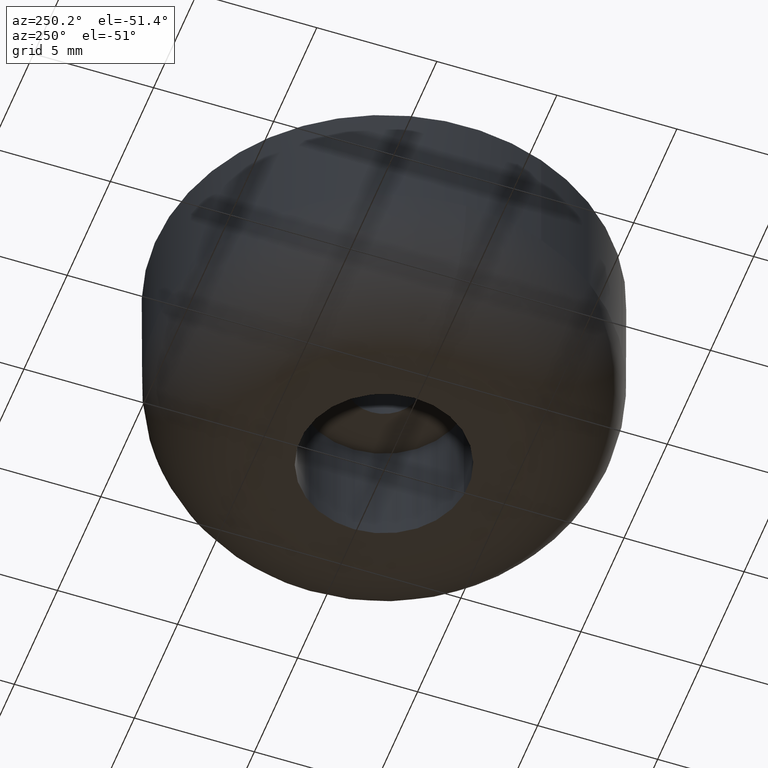
[diagram: clean part render]
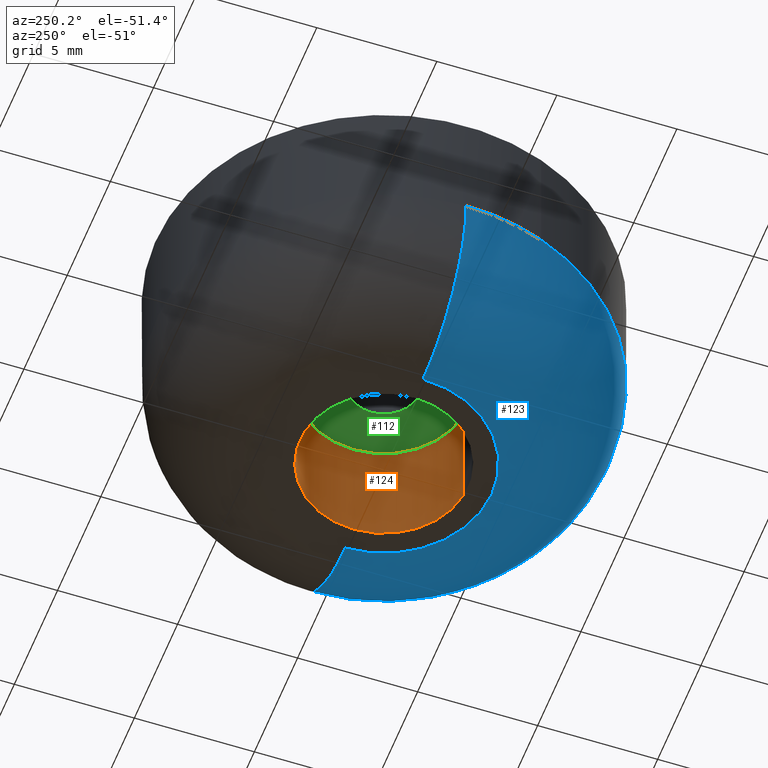
[diagram: same view with three faces highlighted in distinct colors, each labeled with its STEP entity id]
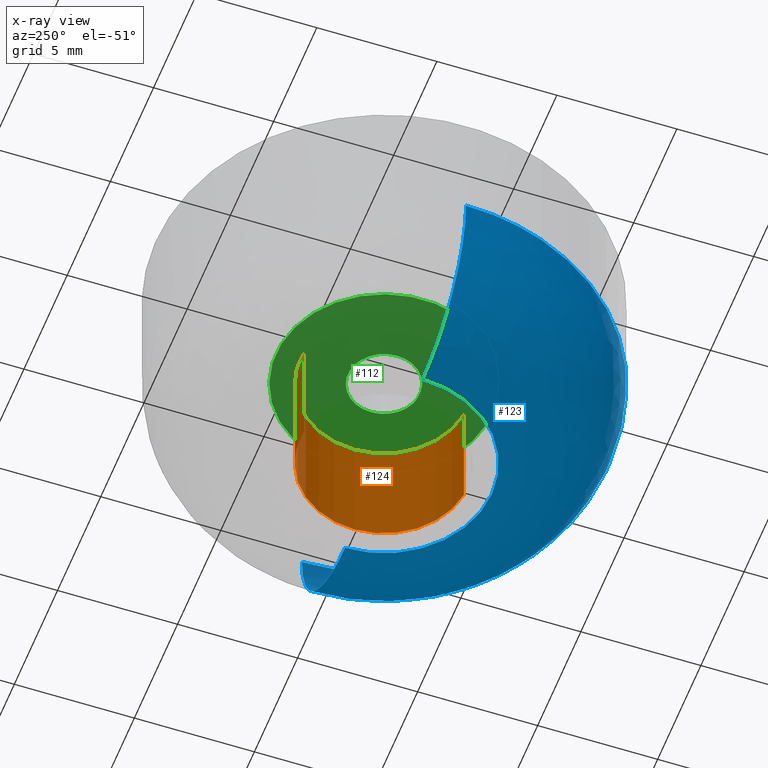
[diagram: x-ray of the same camera — body ghosted, the three highlighted faces saturated]
A machine part, auxiliary view with three faces highlighted in distinct colors.
The next image is the same camera in x-ray (body ghosted, the three faces saturated) — at least one of them is partly hidden behind the body in this view.
Their STEP definitions:

[orange] entity #124 — the highlighted cylindrical surface (partial cylindrical patch) has radius 3.5 mm, axis along (-0, -0, -1).
#124=ADVANCED_FACE('',(#259),#258,.F.);
#258=CYLINDRICAL_SURFACE('',#449,3.50000000000E+000);
#259=FACE_OUTER_BOUND('',#450,.T.);
#446=CARTESIAN_POINT('',(-7.72292183025E-016,1.99786564258E-016,2.50000000000E+000));
#447=DIRECTION('',(-1.19947021122E-014,-1.29797632162E-015,-1.00000000000E+000));
#448=DIRECTION('',(-1.18034234657E-001,9.93009526364E-001,1.26882631389E-016));
#449=AXIS2_PLACEMENT_3D('',#446,#447,#448);
#450=EDGE_LOOP('',(#536,#537,#538,#539));
#536=ORIENTED_EDGE('',*,*,#593,.F.);
#537=ORIENTED_EDGE('',*,*,#604,.T.);
#538=ORIENTED_EDGE('',*,*,#585,.T.);
#539=ORIENTED_EDGE('',*,*,#605,.F.);
#585=EDGE_CURVE('',#707,#706,#714,.T.);
#593=EDGE_CURVE('',#763,#762,#770,.T.);
#604=EDGE_CURVE('',#763,#707,#844,.T.);
#605=EDGE_CURVE('',#762,#706,#850,.T.);
#706=VERTEX_POINT('',#950);
#707=VERTEX_POINT('',#951);
#714=CIRCLE('',#959,3.50000000000E+000);
#762=VERTEX_POINT('',#990);
#763=VERTEX_POINT('',#991);
#770=CIRCLE('',#999,3.50000000000E+000);
#844=(BOUNDED_CURVE() B_SPLINE_CURVE(1,(#1050,#1051),.UNSPECIFIED.,.F.,.F.) B_SPLINE_CURVE_WITH_KNOTS((2,2),(8.33333383004E-002,9.16666664635E-001),.UNSPECIFIED.) CURVE() GEOMETRIC_REPRESENTATION_ITEM() RATIONAL_B_SPLINE_CURVE((1.00000000000E+000,1.00000000000E+000)) REPRESENTATION_ITEM('') );
#850=(BOUNDED_CURVE() B_SPLINE_CURVE(1,(#1052,#1053),.UNSPECIFIED.,.F.,.F.) B_SPLINE_CURVE_WITH_KNOTS((2,2),(8.33333333333E-002,9.16666666667E-001),.UNSPECIFIED.) CURVE() GEOMETRIC_REPRESENTATION_ITEM() RATIONAL_B_SPLINE_CURVE((7.50000000000E-001,7.50000000000E-001)) REPRESENTATION_ITEM('') );
#950=CARTESIAN_POINT('',(4.13720514207E-001,-3.47546188817E+000,2.63624805855E-015));
#951=CARTESIAN_POINT('',(-4.13720514207E-001,3.47546188817E+000,1.32419206077E-015));
#956=CARTESIAN_POINT('',(1.24122934153E-013,5.59552404411E-014,1.98022005966E-015));
#957=DIRECTION('',(-6.30289241881E-015,-9.39059036296E-016,-1.00000000000E+000));
#958=DIRECTION('',(-1.18205861202E-001,9.92989110906E-001,-1.87436571110E-016));
#959=AXIS2_PLACEMENT_3D('',#956,#957,#958);
#990=CARTESIAN_POINT('',(4.13118550316E-001,-3.47553349335E+000,5.00000000000E+000));
#991=CARTESIAN_POINT('',(-4.13119821299E-001,3.47553334227E+000,5.00000000000E+000));
#996=CARTESIAN_POINT('',(3.48387985127E-012,-5.41344746807E-013,5.00000000000E+000));
#997=DIRECTION('',(0.00000000000E+000,0.00000000000E+000,-1.00000000000E+000));
#998=DIRECTION('',(1.18033871518E-001,-9.93009569528E-001,-0.00000000000E+000));
#999=AXIS2_PLACEMENT_3D('',#996,#997,#998);
#1050=CARTESIAN_POINT('',(-4.13119821299E-001,3.47553334227E+000,4.99999997020E+000));
#1051=CARTESIAN_POINT('',(-4.13119821299E-001,3.47553334227E+000,1.21923710572E-008));
#1052=CARTESIAN_POINT('',(4.13119821299E-001,-3.47553334227E+000,5.00000000000E+000));
#1053=CARTESIAN_POINT('',(4.13119821299E-001,-3.47553334227E+000,1.92438657602E-015));

[blue] entity #123 — the highlighted face is a freeform B-spline surface patch.
#123=ADVANCED_FACE('',(#249),#248,.T.);
#248=( BOUNDED_SURFACE() B_SPLINE_SURFACE( 2,2,((#420,#421,#422,#423,#424),(#425,#426,#427,#428,#429),(#430,#431,#432,#433,#434),(#435,#436,#437,#438,#439),(#440,#441,#442,#443,#444)), .UNSPECIFIED.,.F.,.F.,.F.) B_SPLINE_SURFACE_WITH_KNOTS((3,2,3),(3,2,3),(3.35134638810E-014,1.34528292090E+000,2.69056584179E+000),(3.14159265359E+000,4.71238898038E+000,6.28318530718E+000), .UNSPECIFIED. ) GEOMETRIC_REPRESENTATION_ITEM() RATIONAL_B_SPLINE_SURFACE(((1.00000000000E+000,7.07106781187E-001,1.00000000000E+000,7.07106781187E-001,1.00000000000E+000),(7.82178623382E-001,5.53083808692E-001,7.82178623382E-001,5.53083808692E-001,7.82178623382E-001),(1.00000000000E+000,7.07106781187E-001,1.00000000000E+000,7.07106781187E-001,1.00000000000E+000),(7.82178623382E-001,5.53083808692E-001,7.82178623382E-001,5.53083808692E-001,7.82178623382E-001),(1.00000000000E+000,7.07106781187E-001,1.00000000000E+000,7.07106781187E-001,1.00000000000E+000))) REPRESENTATION_ITEM('') SURFACE() );
#249=FACE_OUTER_BOUND('',#445,.T.);
#420=CARTESIAN_POINT('',(-9.50000000000E+000,-4.24912911509E-015,5.00000000000E+000));
#421=CARTESIAN_POINT('',(-9.50000000000E+000,-9.50000000000E+000,5.00000000000E+000));
#422=CARTESIAN_POINT('',(-2.30607091582E-015,-9.50000000000E+000,5.00000000000E+000));
#423=CARTESIAN_POINT('',(9.50000000000E+000,-9.50000000000E+000,5.00000000000E+000));
#424=CARTESIAN_POINT('',(9.50000000000E+000,-1.92237704283E-015,5.00000000000E+000));
#425=CARTESIAN_POINT('',(-9.50000000000E+000,-4.00039607803E-015,1.01718690893E+000));
#426=CARTESIAN_POINT('',(-9.50000000000E+000,-9.50000000000E+000,1.01718690893E+000));
#427=CARTESIAN_POINT('',(-2.55480395289E-015,-9.50000000000E+000,1.01718690893E+000));
#428=CARTESIAN_POINT('',(9.50000000000E+000,-9.50000000000E+000,1.01718690893E+000));
#429=CARTESIAN_POINT('',(9.50000000000E+000,-1.67364400577E-015,1.01718690893E+000));
#430=CARTESIAN_POINT('',(-5.61803398875E+000,-3.46938965585E-015,1.26602827596E-001));
#431=CARTESIAN_POINT('',(-5.61803398875E+000,-5.61803398875E+000,1.26602827596E-001));
#432=CARTESIAN_POINT('',(-3.08581037507E-015,-5.61803398875E+000,1.26602827596E-001));
#433=CARTESIAN_POINT('',(5.61803398875E+000,-5.61803398875E+000,1.26602827596E-001));
#434=CARTESIAN_POINT('',(5.61803398875E+000,-2.09341363212E-015,1.26602827596E-001));
#435=CARTESIAN_POINT('',(-1.73606797750E+000,-2.93838323366E-015,-7.63981253736E-001));
#436=CARTESIAN_POINT('',(-1.73606797750E+000,-1.73606797750E+000,-7.63981253736E-001));
#437=CARTESIAN_POINT('',(-3.61681679725E-015,-1.73606797750E+000,-7.63981253736E-001));
#438=CARTESIAN_POINT('',(1.73606797750E+000,-1.73606797750E+000,-7.63981253736E-001));
#439=CARTESIAN_POINT('',(1.73606797750E+000,-2.51318325848E-015,-7.63981253736E-001));
#440=CARTESIAN_POINT('',(-5.43475726357E-015,-2.94964297943E-015,2.82055052823E+000));
#441=CARTESIAN_POINT('',(-5.43475726357E-015,-4.77884319152E-015,2.82055052823E+000));
#442=CARTESIAN_POINT('',(-3.60555705149E-015,-4.77884319152E-015,2.82055052823E+000));
#443=CARTESIAN_POINT('',(-1.77635683940E-015,-4.77884319152E-015,2.82055052823E+000));
#444=CARTESIAN_POINT('',(-1.77635683940E-015,-2.94964297943E-015,2.82055052823E+000));
#445=EDGE_LOOP('',(#531,#532,#533,#534,#535));
#531=ORIENTED_EDGE('',*,*,#583,.F.);
#532=ORIENTED_EDGE('',*,*,#600,.F.);
#533=ORIENTED_EDGE('',*,*,#602,.F.);
#534=ORIENTED_EDGE('',*,*,#603,.F.);
#535=ORIENTED_EDGE('',*,*,#601,.T.);
#583=EDGE_CURVE('',#693,#692,#700,.T.);
#600=EDGE_CURVE('',#812,#693,#819,.T.);
#601=EDGE_CURVE('',#805,#692,#825,.T.);
#602=EDGE_CURVE('',#831,#812,#832,.T.);
#603=EDGE_CURVE('',#805,#831,#838,.T.);
#692=VERTEX_POINT('',#940);
#693=VERTEX_POINT('',#941);
#700=CIRCLE('',#949,4.50000000000E+000);
#805=VERTEX_POINT('',#1021);
#812=VERTEX_POINT('',#1026);
#819=(BOUNDED_CURVE() B_SPLINE_CURVE(2,(#1031,#1032,#1033,#1034,#1035),.UNSPECIFIED.,.F.,.F.) B_SPLINE_CURVE_WITH_KNOTS((3,2,3),(3.35134638810E-014,1.34528292090E+000,1.58047078842E+000),.UNSPECIFIED.) CURVE() GEOMETRIC_REPRESENTATION_ITEM() RATIONAL_B_SPLINE_CURVE((1.00000000000E+000,7.82178623382E-001,1.00000000000E+000,9.61919575227E-001,9.37153901957E-001)) REPRESENTATION_ITEM('') );
#825=(BOUNDED_CURVE() B_SPLINE_CURVE(2,(#1036,#1037,#1038,#1039,#1040),.UNSPECIFIED.,.F.,.F.) B_SPLINE_CURVE_WITH_KNOTS((3,2,3),(3.35134638810E-014,1.34528292090E+000,1.58047084191E+000),.UNSPECIFIED.) CURVE() GEOMETRIC_REPRESENTATION_ITEM() RATIONAL_B_SPLINE_CURVE((1.00000000000E+000,7.82178623382E-001,1.00000000000E+000,9.61919566566E-001,9.37153890692E-001)) REPRESENTATION_ITEM('') );
#831=VERTEX_POINT('',#1041);
#832=CIRCLE('',#1045,9.50000000000E+000);
#838=CIRCLE('',#1049,9.50000000000E+000);
#940=CARTESIAN_POINT('',(-4.50000000000E+000,-3.50071583865E-015,4.94396190653E-014));
#941=CARTESIAN_POINT('',(4.50000000000E+000,-3.40468394218E-015,4.94396190653E-014));
#946=CARTESIAN_POINT('',(-2.93492664601E-015,-2.94964297943E-015,4.94396190653E-014));
#947=DIRECTION('',(0.00000000000E+000,0.00000000000E+000,-1.00000000000E+000));
#948=DIRECTION('',(-1.00000000000E+000,-0.00000000000E+000,-0.00000000000E+000));
#949=AXIS2_PLACEMENT_3D('',#946,#947,#948);
#1021=CARTESIAN_POINT('',(-9.50000000000E+000,5.32907051820E-015,5.00000000000E+000));
#1026=CARTESIAN_POINT('',(9.50000000000E+000,0.00000000000E+000,5.00000000000E+000));
#1031=CARTESIAN_POINT('',(9.50000000000E+000,-1.92237704283E-015,5.00000000000E+000));
#1032=CARTESIAN_POINT('',(9.50000000000E+000,-1.67364400577E-015,1.01718690893E+000));
#1033=CARTESIAN_POINT('',(5.61803398875E+000,-2.09341363212E-015,1.26602827596E-001));
#1034=CARTESIAN_POINT('',(5.06618507226E+000,-2.15308685255E-015,3.43436007943E-009));
#1035=CARTESIAN_POINT('',(4.50000003033E+000,-2.22242223232E-015,3.67373767602E-013));
#1036=CARTESIAN_POINT('',(-9.50000000000E+000,-4.24912911509E-015,5.00000000000E+000));
#1037=CARTESIAN_POINT('',(-9.50000000000E+000,-4.00039607803E-015,1.01718690893E+000));
#1038=CARTESIAN_POINT('',(-5.61803398875E+000,-3.46938965585E-015,1.26602827596E-001));
#1039=CARTESIAN_POINT('',(-5.06618494178E+000,-3.39390332053E-015,-2.64999508025E-008));
#1040=CARTESIAN_POINT('',(-4.49999976597E+000,-3.32456792581E-015,3.72551185648E-013));
#1041=CARTESIAN_POINT('',(-8.89281995200E+000,-3.34181886122E+000,5.00000000000E+000));
#1042=CARTESIAN_POINT('',(-2.93492664601E-015,-2.94964297943E-015,5.00000000000E+000));
#1043=DIRECTION('',(0.00000000000E+000,0.00000000000E+000,1.00000000000E+000));
#1044=DIRECTION('',(-1.00000000000E+000,4.99600361081E-016,0.00000000000E+000));
#1045=AXIS2_PLACEMENT_3D('',#1042,#1043,#1044);
#1046=CARTESIAN_POINT('',(-2.93492664601E-015,-2.94964297943E-015,5.00000000000E+000));
#1047=DIRECTION('',(0.00000000000E+000,0.00000000000E+000,1.00000000000E+000));
#1048=DIRECTION('',(-1.00000000000E+000,4.99600361081E-016,0.00000000000E+000));
#1049=AXIS2_PLACEMENT_3D('',#1046,#1047,#1048);

[green] entity #112 — the highlighted planar face has unit normal (0, 0, 1).
#112=ADVANCED_FACE('',(#133,#134),#132,.F.);
#132=PLANE('',#341);
#133=FACE_OUTER_BOUND('',#342,.T.);
#134=FACE_BOUND('',#343,.T.);
#338=CARTESIAN_POINT('',(-8.75653788682E+000,-6.82109011964E+000,5.00000000000E+000));
#339=DIRECTION('',(0.00000000000E+000,0.00000000000E+000,1.00000000000E+000));
#340=DIRECTION('',(1.00000000000E+000,0.00000000000E+000,0.00000000000E+000));
#341=AXIS2_PLACEMENT_3D('',#338,#339,#340);
#342=EDGE_LOOP('',(#486,#487));
#343=EDGE_LOOP('',(#488,#489));
#486=ORIENTED_EDGE('',*,*,#570,.T.);
#487=ORIENTED_EDGE('',*,*,#571,.T.);
#488=ORIENTED_EDGE('',*,*,#572,.F.);
#489=ORIENTED_EDGE('',*,*,#573,.F.);
#570=EDGE_CURVE('',#612,#613,#614,.T.);
#571=EDGE_CURVE('',#613,#612,#620,.T.);
#572=EDGE_CURVE('',#626,#627,#628,.T.);
#573=EDGE_CURVE('',#627,#626,#634,.T.);
#612=VERTEX_POINT('',#892);
#613=VERTEX_POINT('',#893);
#614=CIRCLE('',#897,4.50000000000E+000);
#620=CIRCLE('',#901,4.50000000000E+000);
#626=VERTEX_POINT('',#902);
#627=VERTEX_POINT('',#903);
#628=CIRCLE('',#907,1.50000000000E+000);
#634=CIRCLE('',#911,1.50000000000E+000);
#892=CARTESIAN_POINT('',(5.31154054643E-001,-4.46854286879E+000,5.00000000000E+000));
#893=CARTESIAN_POINT('',(-5.31154055956E-001,4.46854286864E+000,5.00000000000E+000));
#894=CARTESIAN_POINT('',(2.79221090693E-012,1.26831878333E-012,5.00000000000E+000));
#895=DIRECTION('',(8.55414504664E-013,1.27922444871E-013,-1.00000000000E+000));
#896=DIRECTION('',(1.18034234365E-001,-9.93009526398E-001,-2.60600102748E-014));
#897=AXIS2_PLACEMENT_3D('',#894,#895,#896);
#898=CARTESIAN_POINT('',(2.79221090693E-012,1.26831878333E-012,5.00000000000E+000));
#899=DIRECTION('',(8.55414504664E-013,1.27922444871E-013,-1.00000000000E+000));
#900=DIRECTION('',(1.18034234365E-001,-9.93009526398E-001,-2.60600102748E-014));
#901=AXIS2_PLACEMENT_3D('',#898,#899,#900);
#902=CARTESIAN_POINT('',(1.77308843490E-001,-1.48948366021E+000,5.00000000000E+000));
#903=CARTESIAN_POINT('',(-1.77308843490E-001,1.48948366021E+000,5.00000000000E+000));
#904=CARTESIAN_POINT('',(4.44089209850E-016,3.33066907388E-016,5.00000000000E+000));
#905=DIRECTION('',(1.01862300020E-014,1.21078406514E-015,-1.00000000000E+000));
#906=DIRECTION('',(-1.18205895660E-001,9.92989106804E-001,-1.77705340482E-018));
#907=AXIS2_PLACEMENT_3D('',#904,#905,#906);
#908=CARTESIAN_POINT('',(4.44089209850E-016,3.33066907388E-016,5.00000000000E+000));
#909=DIRECTION('',(1.01862300020E-014,1.21078406514E-015,-1.00000000000E+000));
#910=DIRECTION('',(-1.18205895660E-001,9.92989106804E-001,-1.77705340482E-018));
#911=AXIS2_PLACEMENT_3D('',#908,#909,#910);